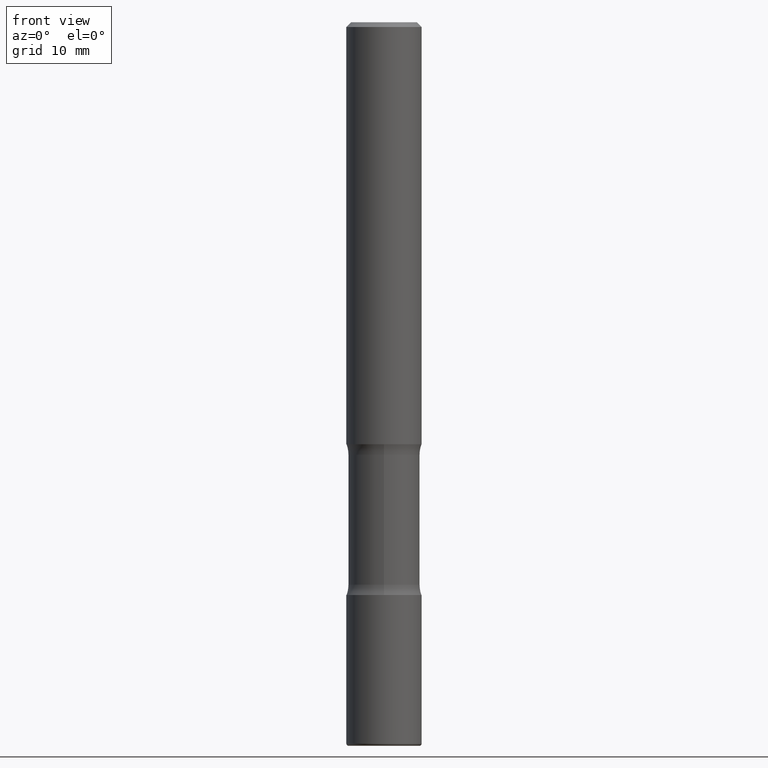
[diagram: clean part render]
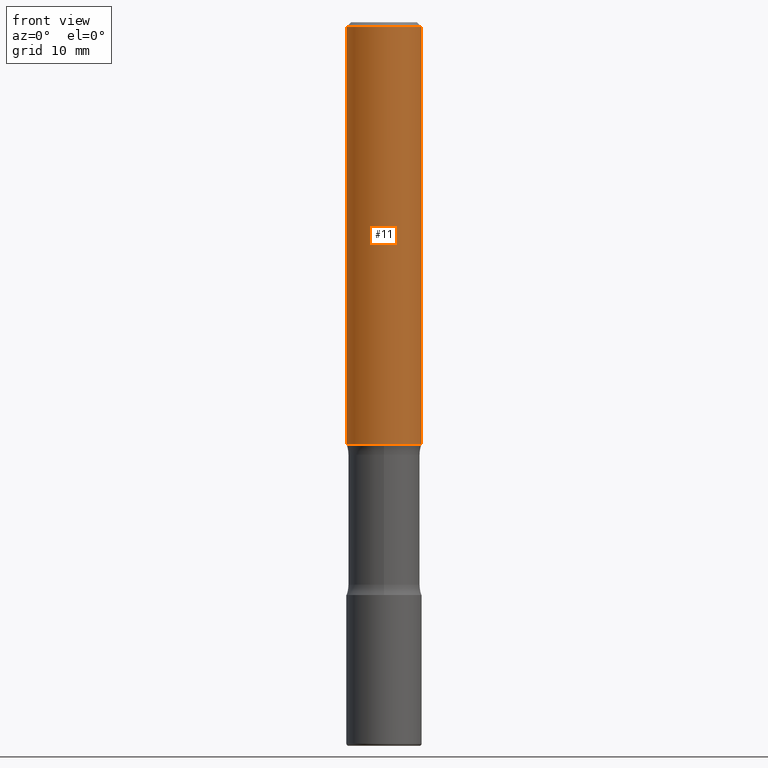
[diagram: same view with one face highlighted and labeled with its STEP entity id]
A machine part, front view. The second image highlights one B-rep face of the part: STEP entity #11.
In plain terms, the highlighted cylindrical surface (partial cylindrical patch) has radius 3.9687 mm, axis along (-0, 0, 1).
Its self-contained STEP definition (entity closure, byte-faithful):
#3 = ORIENTED_EDGE ( 'NONE', *, *, #169, .T. ) ;
#11 = ADVANCED_FACE ( 'NONE', ( #267 ), #397, .T. ) ;
#12 = DIRECTION ( 'NONE',  ( -2.445468806185136597E-29, 3.491481338843145583E-15, 1.000000000000000000 ) ) ;
#17 = CARTESIAN_POINT ( 'NONE',  ( 0.1562500000000000833, -7.201180261363985422E-15, -1.750000000000000444 ) ) ;
#27 = CARTESIAN_POINT ( 'NONE',  ( -0.1562500000000000833, -1.979737960251025472E-15, -1.750000000000000444 ) ) ;
#57 = EDGE_CURVE ( 'NONE', #481, #515, #87, .T. ) ;
#80 = EDGE_CURVE ( 'NONE', #261, #515, #308, .T. ) ;
#87 = CIRCLE ( 'NONE', #150, 0.1562499999999998612 ) ;
#94 = VECTOR ( 'NONE', #534, 39.37007874015748143 ) ;
#97 = DIRECTION ( 'NONE',  ( 1.000000000000000000, -6.982962677686265133E-15, 0.000000000000000000 ) ) ;
#98 = CARTESIAN_POINT ( 'NONE',  ( 0.1562499999999998612, -1.141782438928663922E-15, -0.02000000000000000042 ) ) ;
#135 = CARTESIAN_POINT ( 'NONE',  ( 0.000000000000000000, 0.000000000000000000, 0.000000000000000000 ) ) ;
#137 = VECTOR ( 'NONE', #374, 39.37007874015748143 ) ;
#150 = AXIS2_PLACEMENT_3D ( 'NONE', #305, #12, #262 ) ;
#155 = LINE ( 'NONE', #201, #137 ) ;
#169 = EDGE_CURVE ( 'NONE', #392, #261, #486, .T. ) ;
#178 = DIRECTION ( 'NONE',  ( -2.445468806185136597E-29, 3.491481338843145583E-15, 1.000000000000000000 ) ) ;
#201 = CARTESIAN_POINT ( 'NONE',  ( -0.1562499999999999722, 1.110223024625156343E-15, -7.685836078523288357E-30 ) ) ;
#225 = CARTESIAN_POINT ( 'NONE',  ( 0.1562499999999999722, -1.091087918388478976E-15, 7.619026212181148976E-30 ) ) ;
#261 = VERTEX_POINT ( 'NONE', #17 ) ;
#262 = DIRECTION ( 'NONE',  ( 1.000000000000000000, -6.982962677686266711E-15, 0.000000000000000000 ) ) ;
#267 = FACE_OUTER_BOUND ( 'NONE', #433, .T. ) ;
#269 = CARTESIAN_POINT ( 'NONE',  ( 4.279570410823989605E-29, -6.110092342975506249E-15, -1.750000000000000444 ) ) ;
#283 = EDGE_CURVE ( 'NONE', #392, #481, #155, .T. ) ;
#299 = ORIENTED_EDGE ( 'NONE', *, *, #80, .T. ) ;
#305 = CARTESIAN_POINT ( 'NONE',  ( 4.890937612370273159E-31, -6.982962677686291609E-17, -0.02000000000000000042 ) ) ;
#308 = LINE ( 'NONE', #225, #94 ) ;
#349 = ORIENTED_EDGE ( 'NONE', *, *, #57, .F. ) ;
#352 = DIRECTION ( 'NONE',  ( 1.000000000000000000, -6.982962677686266711E-15, 4.876176775795936353E-29 ) ) ;
#366 = CARTESIAN_POINT ( 'NONE',  ( -0.1562499999999998612, 1.021258291611615284E-15, -0.02000000000000000042 ) ) ;
#374 = DIRECTION ( 'NONE',  ( -2.445468806185136877E-29, 3.491481338843145188E-15, 1.000000000000000000 ) ) ;
#388 = ORIENTED_EDGE ( 'NONE', *, *, #283, .F. ) ;
#392 = VERTEX_POINT ( 'NONE', #27 ) ;
#397 = CYLINDRICAL_SURFACE ( 'NONE', #519, 0.1562499999999999722 ) ;
#402 = DIRECTION ( 'NONE',  ( -2.445468806185136597E-29, 3.491481338843145583E-15, 1.000000000000000000 ) ) ;
#433 = EDGE_LOOP ( 'NONE', ( #388, #3, #299, #349 ) ) ;
#481 = VERTEX_POINT ( 'NONE', #366 ) ;
#486 = CIRCLE ( 'NONE', #511, 0.1562500000000000833 ) ;
#511 = AXIS2_PLACEMENT_3D ( 'NONE', #269, #402, #97 ) ;
#515 = VERTEX_POINT ( 'NONE', #98 ) ;
#519 = AXIS2_PLACEMENT_3D ( 'NONE', #135, #178, #352 ) ;
#534 = DIRECTION ( 'NONE',  ( -2.445468806185136877E-29, 3.491481338843145188E-15, 1.000000000000000000 ) ) ;